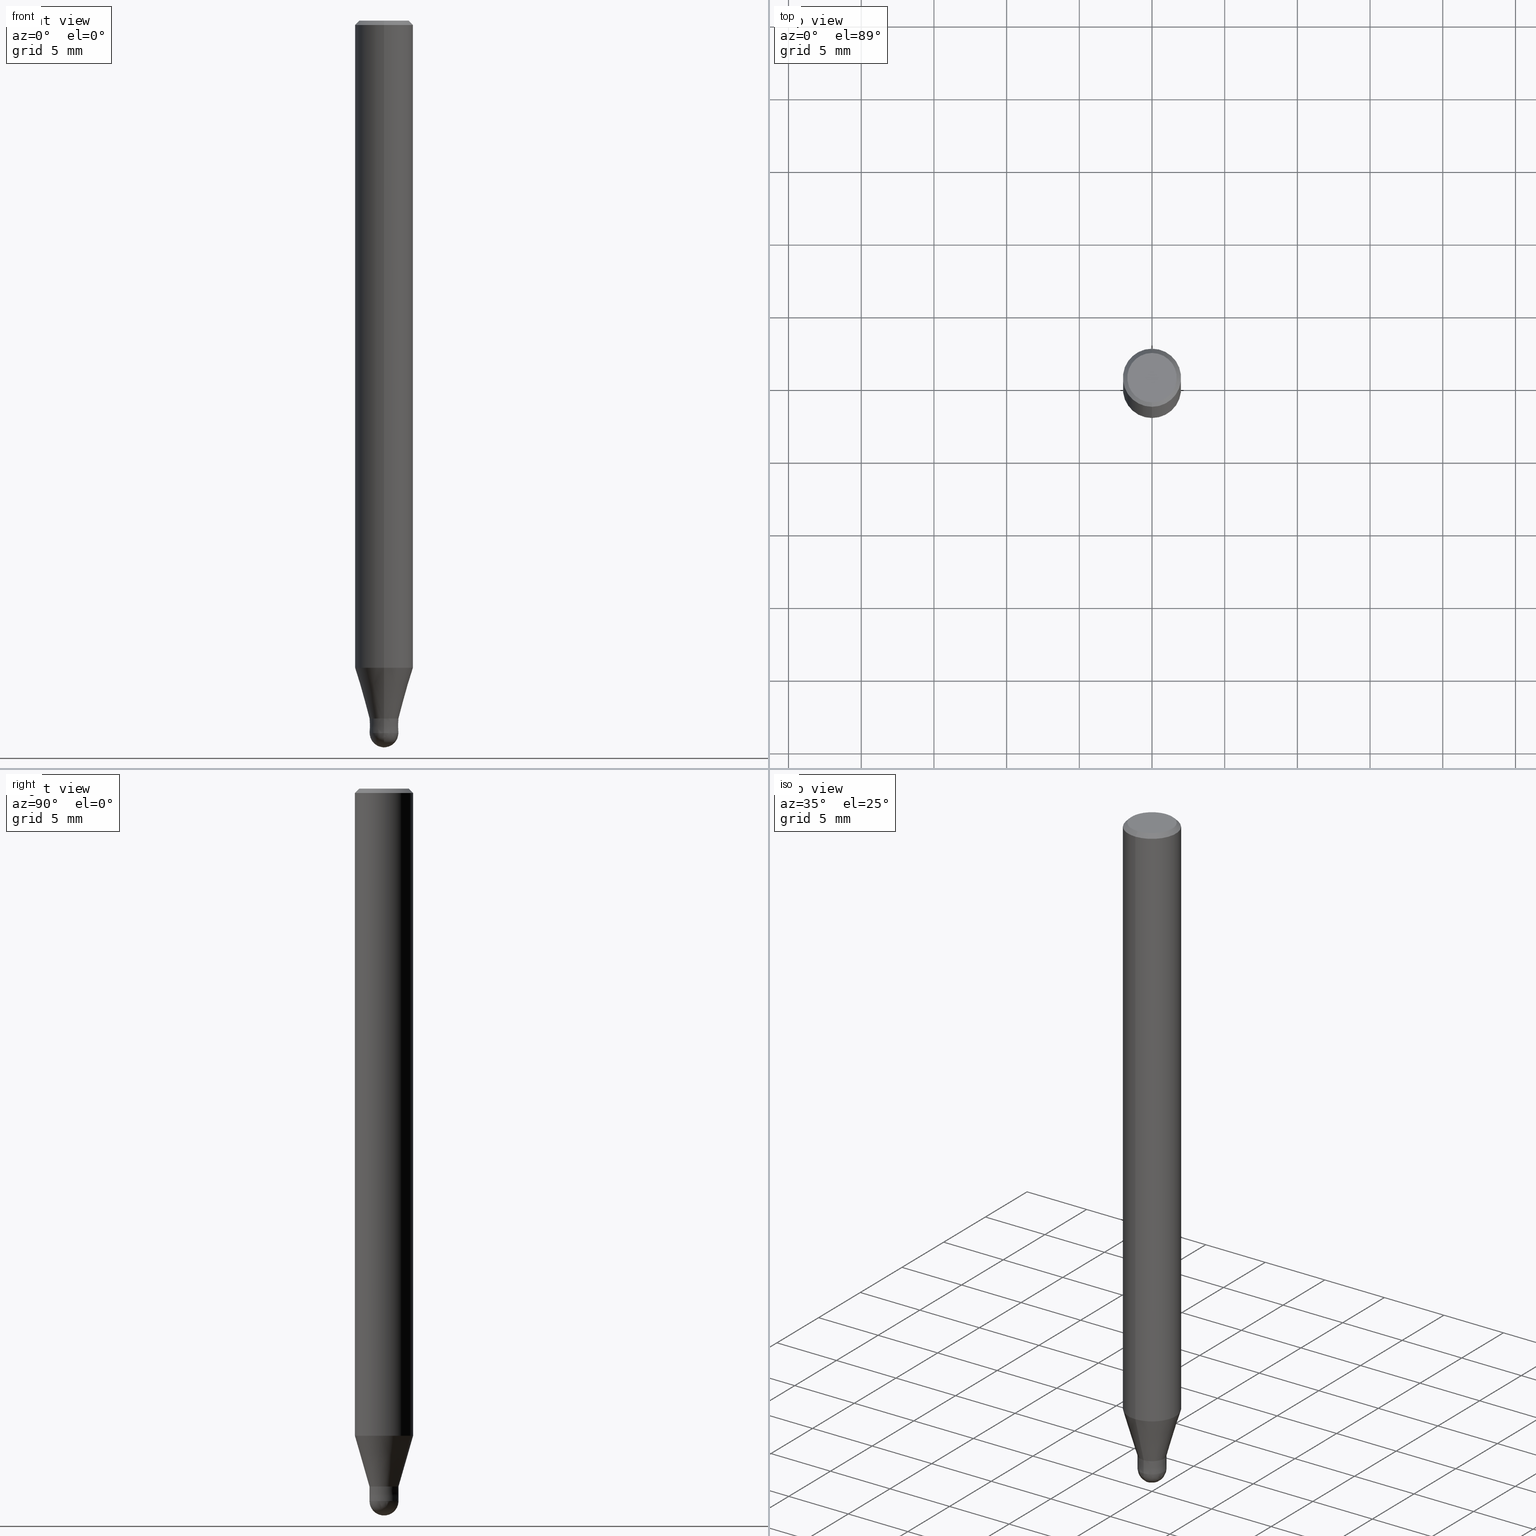
[diagram: canonical four-view strip — front | top / right | iso, engineering-drawing reading convention]
A machine part, canonical four-view strip (front | top / right | iso — engineering-drawing reading convention). The complete STEP part file that produces these views, byte-faithful:
ISO-10303-21;
HEADER;
FILE_DESCRIPTION(('no description'),'unknown implementation level');
FILE_NAME('HSB2020-0200-Huellk.stp','  ',('CIMSOURCE GmbH'),('CADClick - KiM GmbH - www.kimweb.de'),'unknown preprocess','ACIS','unknown authorization');
FILE_SCHEMA(('automotive_design'));
ENDSEC;
DATA;
#1=MECHANICAL_DESIGN_GEOMETRIC_PRESENTATION_REPRESENTATION(' ',(#14,#15,#16,#17,#18,#19,#20,#21,#22,#23,#24,#25,#26,#27,#28,#29,#30,#31,#32,#33,#34,#35,#36,#37,#38,#39,#40,#41,#42,#43,#44,#45,#46,#47,#48,#49,#50,#51,#52,#53,#54,#55,#56,#57,#58,#59,#60,#61,#62,#63,#64,#65,#66),#10);
#2=PRODUCT_DEFINITION_CONTEXT('',#67,'design');
#3=APPLICATION_PROTOCOL_DEFINITION('INTERNATIONAL STANDARD','automotive_design',1994,#67);
#4=PRODUCT_CATEGORY_RELATIONSHIP('NONE','NONE',#68,#69);
#5=SHAPE_DEFINITION_REPRESENTATION(#70,#71);
#6=PRODUCT_DEFINITION_CONTEXT('',#72,'design');
#7=APPLICATION_PROTOCOL_DEFINITION('INTERNATIONAL STANDARD','automotive_design',1994,#72);
#8=PRODUCT_CATEGORY_RELATIONSHIP('NONE','NONE',#73,#74);
#9=SHAPE_DEFINITION_REPRESENTATION(#75,#76);
#10= (GEOMETRIC_REPRESENTATION_CONTEXT(3)GLOBAL_UNCERTAINTY_ASSIGNED_CONTEXT((#79))GLOBAL_UNIT_ASSIGNED_CONTEXT((#81,#82,#83))REPRESENTATION_CONTEXT('NONE','WORKSPACE'));
#14=STYLED_ITEM('',(#85),#86);
#15=STYLED_ITEM('',(#87),#88);
#16=STYLED_ITEM('',(#89),#90);
#17=STYLED_ITEM('',(#91),#92);
#18=STYLED_ITEM('',(#93),#94);
#19=STYLED_ITEM('',(#95),#96);
#20=STYLED_ITEM('',(#97),#98);
#21=STYLED_ITEM('',(#99),#100);
#22=STYLED_ITEM('',(#101),#102);
#23=STYLED_ITEM('',(#103),#104);
#24=STYLED_ITEM('',(#105),#106);
#25=STYLED_ITEM('',(#107),#108);
#26=STYLED_ITEM('',(#109),#110);
#27=STYLED_ITEM('',(#111),#112);
#28=STYLED_ITEM('',(#113),#114);
#29=STYLED_ITEM('',(#115),#116);
#30=STYLED_ITEM('',(#117),#118);
#31=STYLED_ITEM('',(#119),#120);
#32=STYLED_ITEM('',(#121),#122);
#33=STYLED_ITEM('',(#123),#124);
#34=STYLED_ITEM('',(#125),#126);
#35=STYLED_ITEM('',(#127),#128);
#36=STYLED_ITEM('',(#129),#130);
#37=STYLED_ITEM('',(#131),#132);
#38=STYLED_ITEM('',(#133),#134);
#39=STYLED_ITEM('',(#135),#136);
#40=STYLED_ITEM('',(#137),#138);
#41=STYLED_ITEM('',(#139),#140);
#42=STYLED_ITEM('',(#141),#142);
#43=STYLED_ITEM('',(#143),#144);
#44=STYLED_ITEM('',(#145),#146);
#45=STYLED_ITEM('',(#147),#148);
#46=STYLED_ITEM('',(#149),#150);
#47=STYLED_ITEM('',(#151),#152);
#48=STYLED_ITEM('',(#153),#154);
#49=STYLED_ITEM('',(#155),#156);
#50=STYLED_ITEM('',(#157),#158);
#51=STYLED_ITEM('',(#159),#160);
#52=STYLED_ITEM('',(#161),#162);
#53=STYLED_ITEM('',(#163),#164);
#54=STYLED_ITEM('',(#165),#166);
#55=STYLED_ITEM('',(#167),#168);
#56=STYLED_ITEM('',(#169),#170);
#57=STYLED_ITEM('',(#171),#172);
#58=STYLED_ITEM('',(#173),#174);
#59=STYLED_ITEM('',(#175),#176);
#60=STYLED_ITEM('',(#177),#178);
#61=STYLED_ITEM('',(#179),#180);
#62=STYLED_ITEM('',(#181),#182);
#63=STYLED_ITEM('',(#183),#184);
#64=STYLED_ITEM('',(#185),#186);
#65=STYLED_ITEM('',(#187),#188);
#66=STYLED_ITEM('',(#189),#190);
#67=APPLICATION_CONTEXT(' ');
#68=PRODUCT_CATEGORY('part','NONE');
#69=PRODUCT_RELATED_PRODUCT_CATEGORY('detail',' ',(#191));
#70=PRODUCT_DEFINITION_SHAPE('NONE','NONE',#192);
#71=ADVANCED_BREP_SHAPE_REPRESENTATION('1',(#148,#193),#10);
#72=APPLICATION_CONTEXT(' ');
#73=PRODUCT_CATEGORY('part','NONE');
#74=PRODUCT_RELATED_PRODUCT_CATEGORY('detail',' ',(#194));
#75=PRODUCT_DEFINITION_SHAPE('NONE','NONE',#195);
#76=ADVANCED_BREP_SHAPE_REPRESENTATION('2',(#98,#196),#10);
#79=UNCERTAINTY_MEASURE_WITH_UNIT(LENGTH_MEASURE(1.0E-006),#81,'','');
#81= (CONVERSION_BASED_UNIT('MILLIMETRE',#199)LENGTH_UNIT()NAMED_UNIT(#202));
#82= (NAMED_UNIT(#204)PLANE_ANGLE_UNIT()SI_UNIT($,.RADIAN.));
#83= (NAMED_UNIT(#204)SOLID_ANGLE_UNIT()SI_UNIT($,.STERADIAN.));
#85=PRESENTATION_STYLE_ASSIGNMENT((#210));
#86=ADVANCED_FACE('',(#211),#212,.T.);
#87=PRESENTATION_STYLE_ASSIGNMENT((#213));
#88=ADVANCED_FACE('',(#214),#215,.T.);
#89=PRESENTATION_STYLE_ASSIGNMENT((#216));
#90=EDGE_CURVE('',#94,#166,#217,.T.);
#91=PRESENTATION_STYLE_ASSIGNMENT((#218));
#92=VERTEX_POINT('',#219);
#93=PRESENTATION_STYLE_ASSIGNMENT((#220));
#94=VERTEX_POINT('',#221);
#95=PRESENTATION_STYLE_ASSIGNMENT((#222));
#96=EDGE_CURVE('',#100,#128,#223,.T.);
#97=PRESENTATION_STYLE_ASSIGNMENT((#224));
#98=MANIFOLD_SOLID_BREP('2',#225);
#99=PRESENTATION_STYLE_ASSIGNMENT((#226));
#100=VERTEX_POINT('',#227);
#101=PRESENTATION_STYLE_ASSIGNMENT((#228));
#102=EDGE_CURVE('',#166,#92,#229,.T.);
#103=PRESENTATION_STYLE_ASSIGNMENT((#230));
#104=VERTEX_POINT('',#231);
#105=PRESENTATION_STYLE_ASSIGNMENT((#232));
#106=EDGE_CURVE('',#168,#172,#233,.T.);
#107=PRESENTATION_STYLE_ASSIGNMENT((#234));
#108=ADVANCED_FACE('',(#235),#236,.T.);
#109=PRESENTATION_STYLE_ASSIGNMENT((#237));
#110=EDGE_CURVE('',#128,#184,#238,.T.);
#111=PRESENTATION_STYLE_ASSIGNMENT((#239));
#112=EDGE_CURVE('',#92,#144,#240,.T.);
#113=PRESENTATION_STYLE_ASSIGNMENT((#241));
#114=VERTEX_POINT('',#242);
#115=PRESENTATION_STYLE_ASSIGNMENT((#243));
#116=EDGE_CURVE('',#114,#104,#244,.T.);
#117=PRESENTATION_STYLE_ASSIGNMENT((#245));
#118=EDGE_CURVE('',#172,#94,#246,.T.);
#119=PRESENTATION_STYLE_ASSIGNMENT((#247));
#120=ADVANCED_FACE('',(#248),#249,.T.);
#121=PRESENTATION_STYLE_ASSIGNMENT((#250));
#122=EDGE_CURVE('',#154,#136,#251,.T.);
#123=PRESENTATION_STYLE_ASSIGNMENT((#252));
#124=EDGE_CURVE('',#188,#184,#253,.T.);
#125=PRESENTATION_STYLE_ASSIGNMENT((#254));
#126=EDGE_CURVE('',#144,#168,#255,.T.);
#127=PRESENTATION_STYLE_ASSIGNMENT((#256));
#128=VERTEX_POINT('',#257);
#129=PRESENTATION_STYLE_ASSIGNMENT((#258));
#130=ADVANCED_FACE('',(#259),#260,.T.);
#131=PRESENTATION_STYLE_ASSIGNMENT((#261));
#132=ADVANCED_FACE('',(#262),#263,.T.);
#133=PRESENTATION_STYLE_ASSIGNMENT((#264));
#134=EDGE_CURVE('',#104,#114,#265,.T.);
#135=PRESENTATION_STYLE_ASSIGNMENT((#266));
#136=VERTEX_POINT('',#267);
#137=PRESENTATION_STYLE_ASSIGNMENT((#268));
#138=ADVANCED_FACE('',(#269),#270,.T.);
#139=PRESENTATION_STYLE_ASSIGNMENT((#271));
#140=EDGE_CURVE('',#114,#136,#272,.T.);
#141=PRESENTATION_STYLE_ASSIGNMENT((#273));
#142=EDGE_CURVE('',#92,#172,#274,.T.);
#143=PRESENTATION_STYLE_ASSIGNMENT((#275));
#144=VERTEX_POINT('',#276);
#145=PRESENTATION_STYLE_ASSIGNMENT((#277));
#146=EDGE_CURVE('',#188,#184,#278,.T.);
#147=PRESENTATION_STYLE_ASSIGNMENT((#279));
#148=MANIFOLD_SOLID_BREP('1',#280);
#149=PRESENTATION_STYLE_ASSIGNMENT((#281));
#150=ADVANCED_FACE('',(#282),#283,.T.);
#151=PRESENTATION_STYLE_ASSIGNMENT((#284));
#152=ADVANCED_FACE('',(#285),#286,.T.);
#153=PRESENTATION_STYLE_ASSIGNMENT((#287));
#154=VERTEX_POINT('',#288);
#155=PRESENTATION_STYLE_ASSIGNMENT((#289));
#156=ADVANCED_FACE('',(#290,#291),#292,.T.);
#157=PRESENTATION_STYLE_ASSIGNMENT((#293));
#158=EDGE_CURVE('',#136,#154,#294,.T.);
#159=PRESENTATION_STYLE_ASSIGNMENT((#295));
#160=EDGE_CURVE('',#188,#100,#296,.T.);
#161=PRESENTATION_STYLE_ASSIGNMENT((#297));
#162=ADVANCED_FACE('',(#298),#299,.T.);
#163=PRESENTATION_STYLE_ASSIGNMENT((#300));
#164=EDGE_CURVE('',#172,#92,#301,.T.);
#165=PRESENTATION_STYLE_ASSIGNMENT((#302));
#166=VERTEX_POINT('',#303);
#167=PRESENTATION_STYLE_ASSIGNMENT((#304));
#168=VERTEX_POINT('',#305);
#169=PRESENTATION_STYLE_ASSIGNMENT((#306));
#170=EDGE_CURVE('',#184,#188,#307,.T.);
#171=PRESENTATION_STYLE_ASSIGNMENT((#308));
#172=VERTEX_POINT('',#309);
#173=PRESENTATION_STYLE_ASSIGNMENT((#310));
#174=EDGE_CURVE('',#166,#94,#311,.T.);
#175=PRESENTATION_STYLE_ASSIGNMENT((#312));
#176=EDGE_CURVE('',#128,#100,#313,.T.);
#177=PRESENTATION_STYLE_ASSIGNMENT((#314));
#178=ADVANCED_FACE('',(#315),#316,.T.);
#179=PRESENTATION_STYLE_ASSIGNMENT((#317));
#180=ADVANCED_FACE('',(#318),#319,.T.);
#181=PRESENTATION_STYLE_ASSIGNMENT((#320));
#182=ADVANCED_FACE('',(#321),#322,.T.);
#183=PRESENTATION_STYLE_ASSIGNMENT((#323));
#184=VERTEX_POINT('',#324);
#185=PRESENTATION_STYLE_ASSIGNMENT((#325));
#186=EDGE_CURVE('',#154,#104,#326,.T.);
#187=PRESENTATION_STYLE_ASSIGNMENT((#327));
#188=VERTEX_POINT('',#328);
#189=PRESENTATION_STYLE_ASSIGNMENT((#329));
#190=EDGE_CURVE('',#168,#144,#330,.T.);
#191=PRODUCT('1','1','PART-1-DESC',(#331));
#192=PRODUCT_DEFINITION('NONE','NONE',#332,#2);
#193=AXIS2_PLACEMENT_3D('',#333,#334,#335);
#194=PRODUCT('2','2','PART-2-DESC',(#336));
#195=PRODUCT_DEFINITION('NONE','NONE',#337,#6);
#196=AXIS2_PLACEMENT_3D('',#338,#339,#340);
#199=LENGTH_MEASURE_WITH_UNIT(LENGTH_MEASURE(1.0),#341);
#202=DIMENSIONAL_EXPONENTS(1.0,0.0,0.0,0.0,0.0,0.0,0.0);
#204=DIMENSIONAL_EXPONENTS(0.0,0.0,0.0,0.0,0.0,0.0,0.0);
#210=SURFACE_STYLE_USAGE(.BOTH.,#342);
#211=FACE_OUTER_BOUND('',#343,.T.);
#212=CONICAL_SURFACE('',#344,0.99995,9.99999996666557E-005);
#213=SURFACE_STYLE_USAGE(.BOTH.,#345);
#214=FACE_OUTER_BOUND('',#346,.T.);
#215=CONICAL_SURFACE('',#347,1.49995,0.279284171542493);
#216=CURVE_STYLE('',#348,POSITIVE_LENGTH_MEASURE(1.0E-006),#349);
#217=CIRCLE('',#350,1.7);
#218=POINT_STYLE(' ',#351,POSITIVE_LENGTH_MEASURE(1.0E-006),#352);
#219=CARTESIAN_POINT('',(0.0,2.0,-0.299999999999997));
#220=POINT_STYLE(' ',#353,POSITIVE_LENGTH_MEASURE(1.0E-006),#354);
#221=CARTESIAN_POINT('',(2.08183080149804E-016,-1.7,0.0));
#222=CURVE_STYLE('',#355,POSITIVE_LENGTH_MEASURE(1.0E-006),#356);
#223=CIRCLE('',#357,0.9999);
#224=SURFACE_STYLE_USAGE(.BOTH.,#358);
#225=CLOSED_SHELL('',(#130,#86,#120,#138,#180));
#226=POINT_STYLE(' ',#359,POSITIVE_LENGTH_MEASURE(1.0E-006),#360);
#227=CARTESIAN_POINT('',(1.224483893187E-016,-0.9999,-48.0));
#228=CURVE_STYLE('',#361,POSITIVE_LENGTH_MEASURE(1.0E-006),#362);
#229=LINE('',#363,#364);
#230=POINT_STYLE(' ',#365,POSITIVE_LENGTH_MEASURE(1.0E-006),#366);
#231=CARTESIAN_POINT('',(0.0,0.99995,-48.0));
#232=CURVE_STYLE('',#367,POSITIVE_LENGTH_MEASURE(1.0E-006),#368);
#233=LINE('',#369,#370);
#234=SURFACE_STYLE_USAGE(.BOTH.,#371);
#235=FACE_OUTER_BOUND('',#372,.T.);
#236=CYLINDRICAL_SURFACE('',#373,2.0);
#237=CURVE_STYLE('',#374,POSITIVE_LENGTH_MEASURE(1.0E-006),#375);
#238=LINE('',#376,#377);
#239=CURVE_STYLE('',#378,POSITIVE_LENGTH_MEASURE(1.0E-006),#379);
#240=LINE('',#380,#381);
#241=POINT_STYLE(' ',#382,POSITIVE_LENGTH_MEASURE(1.0E-006),#383);
#242=CARTESIAN_POINT('',(1.22454512350469E-016,-0.99995,-48.0));
#243=CURVE_STYLE('',#384,POSITIVE_LENGTH_MEASURE(1.0E-006),#385);
#244=CIRCLE('',#386,0.99995);
#245=CURVE_STYLE('',#387,POSITIVE_LENGTH_MEASURE(1.0E-006),#388);
#246=LINE('',#389,#390);
#247=SURFACE_STYLE_USAGE(.BOTH.,#391);
#248=FACE_OUTER_BOUND('',#392,.T.);
#249=PLANE('',#393);
#250=CURVE_STYLE('',#394,POSITIVE_LENGTH_MEASURE(1.0E-006),#395);
#251=CIRCLE('',#396,1.99995);
#252=CURVE_STYLE('',#397,POSITIVE_LENGTH_MEASURE(1.0E-006),#398);
#253=CIRCLE('',#399,1.0);
#254=CURVE_STYLE('',#400,POSITIVE_LENGTH_MEASURE(1.0E-006),#401);
#255=CIRCLE('',#402,2.0);
#256=POINT_STYLE(' ',#403,POSITIVE_LENGTH_MEASURE(1.0E-006),#404);
#257=CARTESIAN_POINT('',(0.0,0.9999,-48.0));
#258=SURFACE_STYLE_USAGE(.BOTH.,#405);
#259=FACE_OUTER_BOUND('',#406,.T.);
#260=SPHERICAL_SURFACE('',#407,1.0);
#261=SURFACE_STYLE_USAGE(.BOTH.,#408);
#262=FACE_OUTER_BOUND('',#409,.T.);
#263=CONICAL_SURFACE('',#410,1.49995,0.279284171542493);
#264=CURVE_STYLE('',#411,POSITIVE_LENGTH_MEASURE(1.0E-006),#412);
#265=CIRCLE('',#413,0.99995);
#266=POINT_STYLE(' ',#414,POSITIVE_LENGTH_MEASURE(1.0E-006),#415);
#267=CARTESIAN_POINT('',(2.44915147732706E-016,-1.99995,-44.513));
#268=SURFACE_STYLE_USAGE(.BOTH.,#416);
#269=FACE_OUTER_BOUND('',#417,.T.);
#270=CONICAL_SURFACE('',#418,0.99995,9.99999996666557E-005);
#271=CURVE_STYLE('',#419,POSITIVE_LENGTH_MEASURE(1.0E-006),#420);
#272=LINE('',#421,#422);
#273=CURVE_STYLE('',#423,POSITIVE_LENGTH_MEASURE(1.0E-006),#424);
#274=CIRCLE('',#425,2.0);
#275=POINT_STYLE(' ',#426,POSITIVE_LENGTH_MEASURE(1.0E-006),#427);
#276=CARTESIAN_POINT('',(0.0,2.0,-44.513));
#277=CURVE_STYLE('',#428,POSITIVE_LENGTH_MEASURE(1.0E-006),#429);
#278=CIRCLE('',#430,1.0);
#279=SURFACE_STYLE_USAGE(.BOTH.,#431);
#280=CLOSED_SHELL('',(#88,#108,#150,#156,#152,#182,#162,#132,#178));
#281=SURFACE_STYLE_USAGE(.BOTH.,#432);
#282=FACE_OUTER_BOUND('',#433,.T.);
#283=CONICAL_SURFACE('',#434,1.85,0.785398163397453);
#284=SURFACE_STYLE_USAGE(.BOTH.,#435);
#285=FACE_OUTER_BOUND('',#436,.T.);
#286=PLANE('',#437);
#287=POINT_STYLE(' ',#438,POSITIVE_LENGTH_MEASURE(1.0E-006),#439);
#288=CARTESIAN_POINT('',(0.0,1.99995,-44.513));
#289=SURFACE_STYLE_USAGE(.BOTH.,#440);
#290=FACE_OUTER_BOUND('',#441,.T.);
#291=FACE_BOUND('',#442,.T.);
#292=PLANE('',#443);
#293=CURVE_STYLE('',#444,POSITIVE_LENGTH_MEASURE(1.0E-006),#445);
#294=CIRCLE('',#446,1.99995);
#295=CURVE_STYLE('',#447,POSITIVE_LENGTH_MEASURE(1.0E-006),#448);
#296=LINE('',#449,#450);
#297=SURFACE_STYLE_USAGE(.BOTH.,#451);
#298=FACE_OUTER_BOUND('',#452,.T.);
#299=CYLINDRICAL_SURFACE('',#453,2.0);
#300=CURVE_STYLE('',#454,POSITIVE_LENGTH_MEASURE(1.0E-006),#455);
#301=CIRCLE('',#456,2.0);
#302=POINT_STYLE(' ',#457,POSITIVE_LENGTH_MEASURE(1.0E-006),#458);
#303=CARTESIAN_POINT('',(0.0,1.7,0.0));
#304=POINT_STYLE(' ',#459,POSITIVE_LENGTH_MEASURE(1.0E-006),#460);
#305=CARTESIAN_POINT('',(2.44921270764475E-016,-2.0,-44.513));
#306=CURVE_STYLE('',#461,POSITIVE_LENGTH_MEASURE(1.0E-006),#462);
#307=CIRCLE('',#463,1.0);
#308=POINT_STYLE(' ',#464,POSITIVE_LENGTH_MEASURE(1.0E-006),#465);
#309=CARTESIAN_POINT('',(2.44921270764475E-016,-2.0,-0.299999999999997));
#310=CURVE_STYLE('',#466,POSITIVE_LENGTH_MEASURE(1.0E-006),#467);
#311=CIRCLE('',#468,1.7);
#312=CURVE_STYLE('',#469,POSITIVE_LENGTH_MEASURE(1.0E-006),#470);
#313=CIRCLE('',#471,0.9999);
#314=SURFACE_STYLE_USAGE(.BOTH.,#472);
#315=FACE_OUTER_BOUND('',#473,.T.);
#316=PLANE('',#474);
#317=SURFACE_STYLE_USAGE(.BOTH.,#475);
#318=FACE_OUTER_BOUND('',#476,.T.);
#319=SPHERICAL_SURFACE('',#477,1.0);
#320=SURFACE_STYLE_USAGE(.BOTH.,#478);
#321=FACE_OUTER_BOUND('',#479,.T.);
#322=CONICAL_SURFACE('',#480,1.85,0.785398163397453);
#323=POINT_STYLE(' ',#481,POSITIVE_LENGTH_MEASURE(1.0E-006),#482);
#324=CARTESIAN_POINT('',(0.0,1.0,-49.0));
#325=CURVE_STYLE('',#483,POSITIVE_LENGTH_MEASURE(1.0E-006),#484);
#326=LINE('',#485,#486);
#327=POINT_STYLE(' ',#487,POSITIVE_LENGTH_MEASURE(1.0E-006),#488);
#328=CARTESIAN_POINT('',(1.22460635382238E-016,-1.0,-49.0));
#329=CURVE_STYLE('',#489,POSITIVE_LENGTH_MEASURE(1.0E-006),#490);
#330=CIRCLE('',#491,2.0);
#331=PRODUCT_CONTEXT('',#67,'mechanical');
#332=PRODUCT_DEFINITION_FORMATION_WITH_SPECIFIED_SOURCE(' ','NONE',#191,.NOT_KNOWN.);
#333=CARTESIAN_POINT('',(0.0,0.0,0.0));
#334=DIRECTION('',(0.0,0.0,1.0));
#335=DIRECTION('',(1.0,0.0,0.0));
#336=PRODUCT_CONTEXT('',#72,'mechanical');
#337=PRODUCT_DEFINITION_FORMATION_WITH_SPECIFIED_SOURCE(' ','NONE',#194,.NOT_KNOWN.);
#338=CARTESIAN_POINT('',(0.0,0.0,0.0));
#339=DIRECTION('',(0.0,0.0,1.0));
#340=DIRECTION('',(1.0,0.0,0.0));
#341= (NAMED_UNIT(#202)LENGTH_UNIT()SI_UNIT(.MILLI.,.METRE.));
#342=SURFACE_SIDE_STYLE('',(#493));
#343=EDGE_LOOP('',(#494,#495,#496,#497));
#344=AXIS2_PLACEMENT_3D('',#498,#499,#500);
#345=SURFACE_SIDE_STYLE('',(#501));
#346=EDGE_LOOP('',(#502,#503,#504,#505));
#347=AXIS2_PLACEMENT_3D('',#506,#507,#508);
#348=DRAUGHTING_PRE_DEFINED_CURVE_FONT('continuous');
#349=COLOUR_RGB('',0.498039215803146,0.498039215803146,0.498039215803146);
#350=AXIS2_PLACEMENT_3D('',#509,#510,#511);
#351=PRE_DEFINED_MARKER('');
#352=COLOUR_RGB('',0.498039215803146,0.498039215803146,0.498039215803146);
#353=PRE_DEFINED_MARKER('');
#354=COLOUR_RGB('',0.498039215803146,0.498039215803146,0.498039215803146);
#355=DRAUGHTING_PRE_DEFINED_CURVE_FONT('continuous');
#356=COLOUR_RGB('',0.800000011920929,0.800000011920929,0.800000011920929);
#357=AXIS2_PLACEMENT_3D('',#512,#513,#514);
#358=SURFACE_SIDE_STYLE('',(#515));
#359=PRE_DEFINED_MARKER('');
#360=COLOUR_RGB('',0.800000011920929,0.800000011920929,0.800000011920929);
#361=DRAUGHTING_PRE_DEFINED_CURVE_FONT('continuous');
#362=COLOUR_RGB('',0.498039215803146,0.498039215803146,0.498039215803146);
#363=CARTESIAN_POINT('',(-2.2655217545714E-016,1.85,-0.149999999999999));
#364=VECTOR('',#516,1.0);
#365=PRE_DEFINED_MARKER('');
#366=COLOUR_RGB('',0.498039215803146,0.498039215803146,0.498039215803146);
#367=DRAUGHTING_PRE_DEFINED_CURVE_FONT('continuous');
#368=COLOUR_RGB('',0.498039215803146,0.498039215803146,0.498039215803146);
#369=CARTESIAN_POINT('',(2.44921270764475E-016,-2.0,-22.4065));
#370=VECTOR('',#517,1.0);
#371=SURFACE_SIDE_STYLE('',(#518));
#372=EDGE_LOOP('',(#519,#520,#521,#522));
#373=AXIS2_PLACEMENT_3D('',#523,#524,#525);
#374=DRAUGHTING_PRE_DEFINED_CURVE_FONT('continuous');
#375=COLOUR_RGB('',0.800000011920929,0.800000011920929,0.800000011920929);
#376=CARTESIAN_POINT('',(-1.22454512350469E-016,0.99995,-48.5));
#377=VECTOR('',#526,1.0);
#378=DRAUGHTING_PRE_DEFINED_CURVE_FONT('continuous');
#379=COLOUR_RGB('',0.498039215803146,0.498039215803146,0.498039215803146);
#380=CARTESIAN_POINT('',(-2.44921270764475E-016,2.0,-22.4065));
#381=VECTOR('',#527,1.0);
#382=PRE_DEFINED_MARKER('');
#383=COLOUR_RGB('',0.498039215803146,0.498039215803146,0.498039215803146);
#384=DRAUGHTING_PRE_DEFINED_CURVE_FONT('continuous');
#385=COLOUR_RGB('',0.498039215803146,0.498039215803146,0.498039215803146);
#386=AXIS2_PLACEMENT_3D('',#528,#529,#530);
#387=DRAUGHTING_PRE_DEFINED_CURVE_FONT('continuous');
#388=COLOUR_RGB('',0.498039215803146,0.498039215803146,0.498039215803146);
#389=CARTESIAN_POINT('',(2.2655217545714E-016,-1.85,-0.149999999999999));
#390=VECTOR('',#531,1.0);
#391=SURFACE_SIDE_STYLE('',(#532));
#392=EDGE_LOOP('',(#533,#534));
#393=AXIS2_PLACEMENT_3D('',#535,#536,#537);
#394=DRAUGHTING_PRE_DEFINED_CURVE_FONT('continuous');
#395=COLOUR_RGB('',0.498039215803146,0.498039215803146,0.498039215803146);
#396=AXIS2_PLACEMENT_3D('',#538,#539,#540);
#397=DRAUGHTING_PRE_DEFINED_CURVE_FONT('continuous');
#398=COLOUR_RGB('',0.800000011920929,0.800000011920929,0.800000011920929);
#399=AXIS2_PLACEMENT_3D('',#541,#542,#543);
#400=DRAUGHTING_PRE_DEFINED_CURVE_FONT('continuous');
#401=COLOUR_RGB('',0.498039215803146,0.498039215803146,0.498039215803146);
#402=AXIS2_PLACEMENT_3D('',#544,#545,#546);
#403=PRE_DEFINED_MARKER('');
#404=COLOUR_RGB('',0.800000011920929,0.800000011920929,0.800000011920929);
#405=SURFACE_SIDE_STYLE('',(#547));
#406=EDGE_LOOP('',(#548,#549));
#407=AXIS2_PLACEMENT_3D('',#550,#551,#552);
#408=SURFACE_SIDE_STYLE('',(#553));
#409=EDGE_LOOP('',(#554,#555,#556,#557));
#410=AXIS2_PLACEMENT_3D('',#558,#559,#560);
#411=DRAUGHTING_PRE_DEFINED_CURVE_FONT('continuous');
#412=COLOUR_RGB('',0.498039215803146,0.498039215803146,0.498039215803146);
#413=AXIS2_PLACEMENT_3D('',#561,#562,#563);
#414=PRE_DEFINED_MARKER('');
#415=COLOUR_RGB('',0.498039215803146,0.498039215803146,0.498039215803146);
#416=SURFACE_SIDE_STYLE('',(#564));
#417=EDGE_LOOP('',(#565,#566,#567,#568));
#418=AXIS2_PLACEMENT_3D('',#569,#570,#571);
#419=DRAUGHTING_PRE_DEFINED_CURVE_FONT('continuous');
#420=COLOUR_RGB('',0.498039215803146,0.498039215803146,0.498039215803146);
#421=CARTESIAN_POINT('',(1.83684830041587E-016,-1.49995,-46.2565));
#422=VECTOR('',#572,1.0);
#423=DRAUGHTING_PRE_DEFINED_CURVE_FONT('continuous');
#424=COLOUR_RGB('',0.498039215803146,0.498039215803146,0.498039215803146);
#425=AXIS2_PLACEMENT_3D('',#573,#574,#575);
#426=PRE_DEFINED_MARKER('');
#427=COLOUR_RGB('',0.498039215803146,0.498039215803146,0.498039215803146);
#428=DRAUGHTING_PRE_DEFINED_CURVE_FONT('continuous');
#429=COLOUR_RGB('',0.800000011920929,0.800000011920929,0.800000011920929);
#430=AXIS2_PLACEMENT_3D('',#576,#577,#578);
#431=SURFACE_SIDE_STYLE('',(#579));
#432=SURFACE_SIDE_STYLE('',(#580));
#433=EDGE_LOOP('',(#581,#582,#583,#584));
#434=AXIS2_PLACEMENT_3D('',#585,#586,#587);
#435=SURFACE_SIDE_STYLE('',(#588));
#436=EDGE_LOOP('',(#589,#590));
#437=AXIS2_PLACEMENT_3D('',#591,#592,#593);
#438=PRE_DEFINED_MARKER('');
#439=COLOUR_RGB('',0.498039215803146,0.498039215803146,0.498039215803146);
#440=SURFACE_SIDE_STYLE('',(#594));
#441=EDGE_LOOP('',(#595,#596));
#442=EDGE_LOOP('',(#597,#598));
#443=AXIS2_PLACEMENT_3D('',#599,#600,#601);
#444=DRAUGHTING_PRE_DEFINED_CURVE_FONT('continuous');
#445=COLOUR_RGB('',0.498039215803146,0.498039215803146,0.498039215803146);
#446=AXIS2_PLACEMENT_3D('',#602,#603,#604);
#447=DRAUGHTING_PRE_DEFINED_CURVE_FONT('continuous');
#448=COLOUR_RGB('',0.800000011920929,0.800000011920929,0.800000011920929);
#449=CARTESIAN_POINT('',(1.22454512350469E-016,-0.99995,-48.5));
#450=VECTOR('',#605,1.0);
#451=SURFACE_SIDE_STYLE('',(#606));
#452=EDGE_LOOP('',(#607,#608,#609,#610));
#453=AXIS2_PLACEMENT_3D('',#611,#612,#613);
#454=DRAUGHTING_PRE_DEFINED_CURVE_FONT('continuous');
#455=COLOUR_RGB('',0.498039215803146,0.498039215803146,0.498039215803146);
#456=AXIS2_PLACEMENT_3D('',#614,#615,#616);
#457=PRE_DEFINED_MARKER('');
#458=COLOUR_RGB('',0.498039215803146,0.498039215803146,0.498039215803146);
#459=PRE_DEFINED_MARKER('');
#460=COLOUR_RGB('',0.498039215803146,0.498039215803146,0.498039215803146);
#461=DRAUGHTING_PRE_DEFINED_CURVE_FONT('continuous');
#462=COLOUR_RGB('',0.800000011920929,0.800000011920929,0.800000011920929);
#463=AXIS2_PLACEMENT_3D('',#617,#618,#619);
#464=PRE_DEFINED_MARKER('');
#465=COLOUR_RGB('',0.498039215803146,0.498039215803146,0.498039215803146);
#466=DRAUGHTING_PRE_DEFINED_CURVE_FONT('continuous');
#467=COLOUR_RGB('',0.498039215803146,0.498039215803146,0.498039215803146);
#468=AXIS2_PLACEMENT_3D('',#620,#621,#622);
#469=DRAUGHTING_PRE_DEFINED_CURVE_FONT('continuous');
#470=COLOUR_RGB('',0.800000011920929,0.800000011920929,0.800000011920929);
#471=AXIS2_PLACEMENT_3D('',#623,#624,#625);
#472=SURFACE_SIDE_STYLE('',(#626));
#473=EDGE_LOOP('',(#627,#628));
#474=AXIS2_PLACEMENT_3D('',#629,#630,#631);
#475=SURFACE_SIDE_STYLE('',(#632));
#476=EDGE_LOOP('',(#633,#634));
#477=AXIS2_PLACEMENT_3D('',#635,#636,#637);
#478=SURFACE_SIDE_STYLE('',(#638));
#479=EDGE_LOOP('',(#639,#640,#641,#642));
#480=AXIS2_PLACEMENT_3D('',#643,#644,#645);
#481=PRE_DEFINED_MARKER('');
#482=COLOUR_RGB('',0.800000011920929,0.800000011920929,0.800000011920929);
#483=DRAUGHTING_PRE_DEFINED_CURVE_FONT('continuous');
#484=COLOUR_RGB('',0.498039215803146,0.498039215803146,0.498039215803146);
#485=CARTESIAN_POINT('',(-1.83684830041587E-016,1.49995,-46.2565));
#486=VECTOR('',#646,1.0);
#487=PRE_DEFINED_MARKER('');
#488=COLOUR_RGB('',0.800000011920929,0.800000011920929,0.800000011920929);
#489=DRAUGHTING_PRE_DEFINED_CURVE_FONT('continuous');
#490=COLOUR_RGB('',0.498039215803146,0.498039215803146,0.498039215803146);
#491=AXIS2_PLACEMENT_3D('',#647,#648,#649);
#493=SURFACE_STYLE_FILL_AREA(#650);
#494=ORIENTED_EDGE('',*,*,#110,.F.);
#495=ORIENTED_EDGE('',*,*,#176,.T.);
#496=ORIENTED_EDGE('',*,*,#160,.F.);
#497=ORIENTED_EDGE('',*,*,#170,.F.);
#498=CARTESIAN_POINT('',(0.0,0.0,-48.5));
#499=DIRECTION('',(0.0,-0.0,-1.0));
#500=DIRECTION('',(0.0,1.0,0.0));
#501=SURFACE_STYLE_FILL_AREA(#651);
#502=ORIENTED_EDGE('',*,*,#186,.F.);
#503=ORIENTED_EDGE('',*,*,#122,.T.);
#504=ORIENTED_EDGE('',*,*,#140,.F.);
#505=ORIENTED_EDGE('',*,*,#134,.F.);
#506=CARTESIAN_POINT('',(0.0,0.0,-46.2565));
#507=DIRECTION('',(-0.0,-0.0,1.0));
#508=DIRECTION('',(0.0,1.0,0.0));
#509=CARTESIAN_POINT('',(0.0,0.0,0.0));
#510=DIRECTION('',(0.0,0.0,-1.0));
#511=DIRECTION('',(0.0,1.0,0.0));
#512=CARTESIAN_POINT('',(0.0,0.0,-48.0));
#513=DIRECTION('',(0.0,0.0,-1.0));
#514=DIRECTION('',(0.0,1.0,0.0));
#515=SURFACE_STYLE_FILL_AREA(#652);
#516=DIRECTION('',(-8.6592745707194E-017,0.707106781186551,-0.707106781186544));
#517=DIRECTION('',(-0.0,-0.0,1.0));
#518=SURFACE_STYLE_FILL_AREA(#653);
#519=ORIENTED_EDGE('',*,*,#112,.F.);
#520=ORIENTED_EDGE('',*,*,#142,.T.);
#521=ORIENTED_EDGE('',*,*,#106,.F.);
#522=ORIENTED_EDGE('',*,*,#126,.F.);
#523=CARTESIAN_POINT('',(0.0,0.0,-22.4065));
#524=DIRECTION('',(-0.0,-0.0,1.0));
#525=DIRECTION('',(0.0,1.0,0.0));
#526=DIRECTION('',(-1.22460634769921E-020,9.9999999499989E-005,-0.999999995));
#527=DIRECTION('',(0.0,0.0,-1.0));
#528=CARTESIAN_POINT('',(0.0,0.0,-48.0));
#529=DIRECTION('',(0.0,0.0,-1.0));
#530=DIRECTION('',(0.0,1.0,0.0));
#531=DIRECTION('',(-8.6592745707194E-017,0.707106781186551,0.707106781186544));
#532=SURFACE_STYLE_FILL_AREA(#654);
#533=ORIENTED_EDGE('',*,*,#176,.F.);
#534=ORIENTED_EDGE('',*,*,#96,.F.);
#535=CARTESIAN_POINT('',(0.0,0.49995,-48.0));
#536=DIRECTION('',(-0.0,0.0,1.0));
#537=DIRECTION('',(0.0,-1.0,0.0));
#538=CARTESIAN_POINT('',(0.0,0.0,-44.513));
#539=DIRECTION('',(0.0,0.0,-1.0));
#540=DIRECTION('',(0.0,1.0,0.0));
#541=CARTESIAN_POINT('',(0.0,0.0,-49.0));
#542=DIRECTION('',(1.0,0.0,1.22460635382238E-016));
#543=DIRECTION('',(-1.22460635382238E-016,0.0,1.0));
#544=CARTESIAN_POINT('',(0.0,0.0,-44.513));
#545=DIRECTION('',(0.0,0.0,-1.0));
#546=DIRECTION('',(0.0,1.0,0.0));
#547=SURFACE_STYLE_FILL_AREA(#655);
#548=ORIENTED_EDGE('',*,*,#124,.F.);
#549=ORIENTED_EDGE('',*,*,#146,.T.);
#550=CARTESIAN_POINT('',(0.0,0.0,-49.0));
#551=DIRECTION('',(0.0,1.0,0.0));
#552=DIRECTION('',(0.0,0.0,-1.0));
#553=SURFACE_STYLE_FILL_AREA(#656);
#554=ORIENTED_EDGE('',*,*,#186,.T.);
#555=ORIENTED_EDGE('',*,*,#116,.F.);
#556=ORIENTED_EDGE('',*,*,#140,.T.);
#557=ORIENTED_EDGE('',*,*,#158,.T.);
#558=CARTESIAN_POINT('',(0.0,0.0,-46.2565));
#559=DIRECTION('',(-0.0,-0.0,1.0));
#560=DIRECTION('',(0.0,1.0,0.0));
#561=CARTESIAN_POINT('',(0.0,0.0,-48.0));
#562=DIRECTION('',(0.0,0.0,-1.0));
#563=DIRECTION('',(0.0,1.0,0.0));
#564=SURFACE_STYLE_FILL_AREA(#657);
#565=ORIENTED_EDGE('',*,*,#110,.T.);
#566=ORIENTED_EDGE('',*,*,#146,.F.);
#567=ORIENTED_EDGE('',*,*,#160,.T.);
#568=ORIENTED_EDGE('',*,*,#96,.T.);
#569=CARTESIAN_POINT('',(0.0,0.0,-48.5));
#570=DIRECTION('',(0.0,-0.0,-1.0));
#571=DIRECTION('',(0.0,1.0,0.0));
#572=DIRECTION('',(3.3758432755158E-017,-0.275667626987133,0.961253015304131));
#573=CARTESIAN_POINT('',(0.0,0.0,-0.299999999999997));
#574=DIRECTION('',(0.0,0.0,-1.0));
#575=DIRECTION('',(0.0,1.0,0.0));
#576=CARTESIAN_POINT('',(0.0,0.0,-49.0));
#577=DIRECTION('',(0.0,0.0,-1.0));
#578=DIRECTION('',(0.0,1.0,0.0));
#579=SURFACE_STYLE_FILL_AREA(#658);
#580=SURFACE_STYLE_FILL_AREA(#659);
#581=ORIENTED_EDGE('',*,*,#102,.F.);
#582=ORIENTED_EDGE('',*,*,#174,.T.);
#583=ORIENTED_EDGE('',*,*,#118,.F.);
#584=ORIENTED_EDGE('',*,*,#142,.F.);
#585=CARTESIAN_POINT('',(0.0,0.0,-0.149999999999999));
#586=DIRECTION('',(0.0,-0.0,-1.0));
#587=DIRECTION('',(0.0,1.0,0.0));
#588=SURFACE_STYLE_FILL_AREA(#660);
#589=ORIENTED_EDGE('',*,*,#174,.F.);
#590=ORIENTED_EDGE('',*,*,#90,.F.);
#591=CARTESIAN_POINT('',(0.0,0.85,0.0));
#592=DIRECTION('',(-0.0,0.0,1.0));
#593=DIRECTION('',(0.0,-1.0,0.0));
#594=SURFACE_STYLE_FILL_AREA(#661);
#595=ORIENTED_EDGE('',*,*,#126,.T.);
#596=ORIENTED_EDGE('',*,*,#190,.T.);
#597=ORIENTED_EDGE('',*,*,#122,.F.);
#598=ORIENTED_EDGE('',*,*,#158,.F.);
#599=CARTESIAN_POINT('',(0.0,1.0,-44.513));
#600=DIRECTION('',(0.0,0.0,-1.0));
#601=DIRECTION('',(0.0,1.0,0.0));
#602=CARTESIAN_POINT('',(0.0,0.0,-44.513));
#603=DIRECTION('',(0.0,0.0,-1.0));
#604=DIRECTION('',(0.0,1.0,0.0));
#605=DIRECTION('',(-1.22460634769921E-020,9.9999999499989E-005,0.999999995));
#606=SURFACE_STYLE_FILL_AREA(#662);
#607=ORIENTED_EDGE('',*,*,#112,.T.);
#608=ORIENTED_EDGE('',*,*,#190,.F.);
#609=ORIENTED_EDGE('',*,*,#106,.T.);
#610=ORIENTED_EDGE('',*,*,#164,.T.);
#611=CARTESIAN_POINT('',(0.0,0.0,-22.4065));
#612=DIRECTION('',(-0.0,-0.0,1.0));
#613=DIRECTION('',(0.0,1.0,0.0));
#614=CARTESIAN_POINT('',(0.0,0.0,-0.299999999999997));
#615=DIRECTION('',(0.0,0.0,-1.0));
#616=DIRECTION('',(0.0,1.0,0.0));
#617=CARTESIAN_POINT('',(0.0,0.0,-49.0));
#618=DIRECTION('',(0.0,0.0,-1.0));
#619=DIRECTION('',(0.0,1.0,0.0));
#620=CARTESIAN_POINT('',(0.0,0.0,0.0));
#621=DIRECTION('',(0.0,0.0,-1.0));
#622=DIRECTION('',(0.0,1.0,0.0));
#623=CARTESIAN_POINT('',(0.0,0.0,-48.0));
#624=DIRECTION('',(0.0,0.0,-1.0));
#625=DIRECTION('',(0.0,1.0,0.0));
#626=SURFACE_STYLE_FILL_AREA(#663);
#627=ORIENTED_EDGE('',*,*,#134,.T.);
#628=ORIENTED_EDGE('',*,*,#116,.T.);
#629=CARTESIAN_POINT('',(0.0,0.499975,-48.0));
#630=DIRECTION('',(0.0,0.0,-1.0));
#631=DIRECTION('',(0.0,1.0,0.0));
#632=SURFACE_STYLE_FILL_AREA(#664);
#633=ORIENTED_EDGE('',*,*,#124,.T.);
#634=ORIENTED_EDGE('',*,*,#170,.T.);
#635=CARTESIAN_POINT('',(0.0,0.0,-49.0));
#636=DIRECTION('',(0.0,1.0,0.0));
#637=DIRECTION('',(0.0,0.0,-1.0));
#638=SURFACE_STYLE_FILL_AREA(#665);
#639=ORIENTED_EDGE('',*,*,#102,.T.);
#640=ORIENTED_EDGE('',*,*,#164,.F.);
#641=ORIENTED_EDGE('',*,*,#118,.T.);
#642=ORIENTED_EDGE('',*,*,#90,.T.);
#643=CARTESIAN_POINT('',(0.0,0.0,-0.149999999999999));
#644=DIRECTION('',(0.0,-0.0,-1.0));
#645=DIRECTION('',(0.0,1.0,0.0));
#646=DIRECTION('',(3.3758432755158E-017,-0.275667626987133,-0.961253015304131));
#647=CARTESIAN_POINT('',(0.0,0.0,-44.513));
#648=DIRECTION('',(0.0,0.0,-1.0));
#649=DIRECTION('',(0.0,1.0,0.0));
#650=FILL_AREA_STYLE('',(#666));
#651=FILL_AREA_STYLE('',(#667));
#652=FILL_AREA_STYLE('',(#668));
#653=FILL_AREA_STYLE('',(#669));
#654=FILL_AREA_STYLE('',(#670));
#655=FILL_AREA_STYLE('',(#671));
#656=FILL_AREA_STYLE('',(#672));
#657=FILL_AREA_STYLE('',(#673));
#658=FILL_AREA_STYLE('',(#674));
#659=FILL_AREA_STYLE('',(#675));
#660=FILL_AREA_STYLE('',(#676));
#661=FILL_AREA_STYLE('',(#677));
#662=FILL_AREA_STYLE('',(#678));
#663=FILL_AREA_STYLE('',(#679));
#664=FILL_AREA_STYLE('',(#680));
#665=FILL_AREA_STYLE('',(#681));
#666=FILL_AREA_STYLE_COLOUR('',#682);
#667=FILL_AREA_STYLE_COLOUR('',#683);
#668=FILL_AREA_STYLE_COLOUR('',#684);
#669=FILL_AREA_STYLE_COLOUR('',#685);
#670=FILL_AREA_STYLE_COLOUR('',#686);
#671=FILL_AREA_STYLE_COLOUR('',#687);
#672=FILL_AREA_STYLE_COLOUR('',#688);
#673=FILL_AREA_STYLE_COLOUR('',#689);
#674=FILL_AREA_STYLE_COLOUR('',#690);
#675=FILL_AREA_STYLE_COLOUR('',#691);
#676=FILL_AREA_STYLE_COLOUR('',#692);
#677=FILL_AREA_STYLE_COLOUR('',#693);
#678=FILL_AREA_STYLE_COLOUR('',#694);
#679=FILL_AREA_STYLE_COLOUR('',#695);
#680=FILL_AREA_STYLE_COLOUR('',#696);
#681=FILL_AREA_STYLE_COLOUR('',#697);
#682=COLOUR_RGB('',0.800000011920929,0.800000011920929,0.800000011920929);
#683=COLOUR_RGB('',0.498039215803146,0.498039215803146,0.498039215803146);
#684=COLOUR_RGB('',0.800000011920929,0.800000011920929,0.800000011920929);
#685=COLOUR_RGB('',0.498039215803146,0.498039215803146,0.498039215803146);
#686=COLOUR_RGB('',0.800000011920929,0.800000011920929,0.800000011920929);
#687=COLOUR_RGB('',0.800000011920929,0.800000011920929,0.800000011920929);
#688=COLOUR_RGB('',0.498039215803146,0.498039215803146,0.498039215803146);
#689=COLOUR_RGB('',0.800000011920929,0.800000011920929,0.800000011920929);
#690=COLOUR_RGB('',0.498039215803146,0.498039215803146,0.498039215803146);
#691=COLOUR_RGB('',0.498039215803146,0.498039215803146,0.498039215803146);
#692=COLOUR_RGB('',0.498039215803146,0.498039215803146,0.498039215803146);
#693=COLOUR_RGB('',0.498039215803146,0.498039215803146,0.498039215803146);
#694=COLOUR_RGB('',0.498039215803146,0.498039215803146,0.498039215803146);
#695=COLOUR_RGB('',0.498039215803146,0.498039215803146,0.498039215803146);
#696=COLOUR_RGB('',0.800000011920929,0.800000011920929,0.800000011920929);
#697=COLOUR_RGB('',0.498039215803146,0.498039215803146,0.498039215803146);
#698=AXIS2_PLACEMENT_3D('PCS',#699,#700,#701);
#699=CARTESIAN_POINT('',(0.0,0.0,0.0));
#700=DIRECTION('',(0.0,0.0,1.0));
#701=DIRECTION('',(1.0,0.0,0.0));
#702=AXIS2_PLACEMENT_3D('CIP',#703,#704,#705);
#703=CARTESIAN_POINT('',(0.0,0.0,-50.0));
#704=DIRECTION('',(0.0,0.0,1.0));
#705=DIRECTION('',(1.0,0.0,0.0));
#706=AXIS2_PLACEMENT_3D('CRP',#707,#708,#709);
#707=CARTESIAN_POINT('',(-1.0,0.0,-50.0));
#708=DIRECTION('',(0.0,0.0,1.0));
#709=DIRECTION('',(1.0,0.0,0.0));
#710=AXIS2_PLACEMENT_3D('MCS',#711,#712,#713);
#711=CARTESIAN_POINT('',(0.0,0.0,-44.513));
#712=DIRECTION('',(0.0,0.0,1.0));
#713=DIRECTION('',(1.0,0.0,0.0));
#714=CONSTRUCTIVE_GEOMETRY_REPRESENTATION_RELATIONSHIP('coordinate systems',$,#71,#715);
#715=CONSTRUCTIVE_GEOMETRY_REPRESENTATION('coordinate systems',(#698,#702,#706,#710),#10);
ENDSEC;
END-ISO-10303-21;
